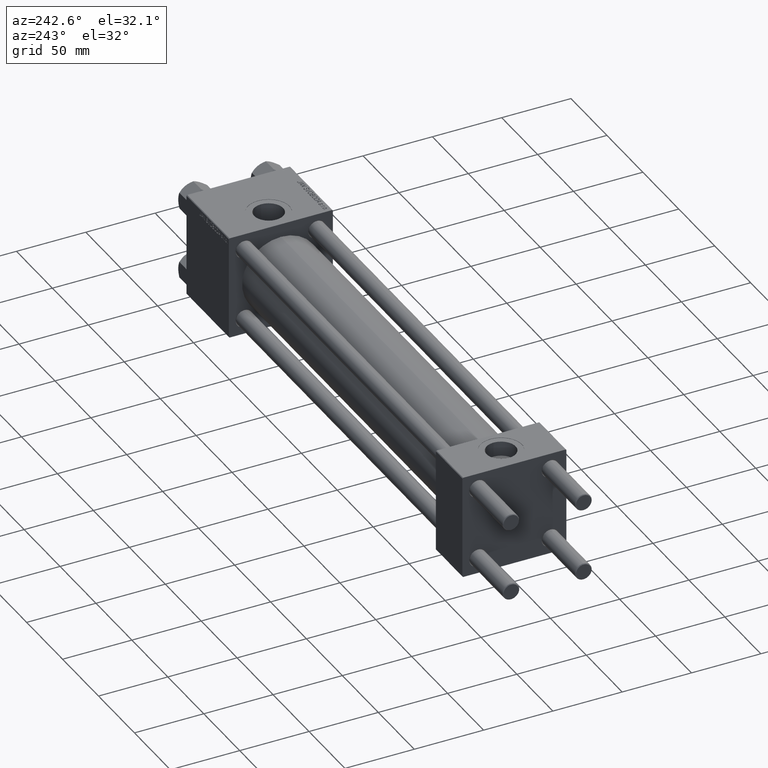
[diagram: clean part render]
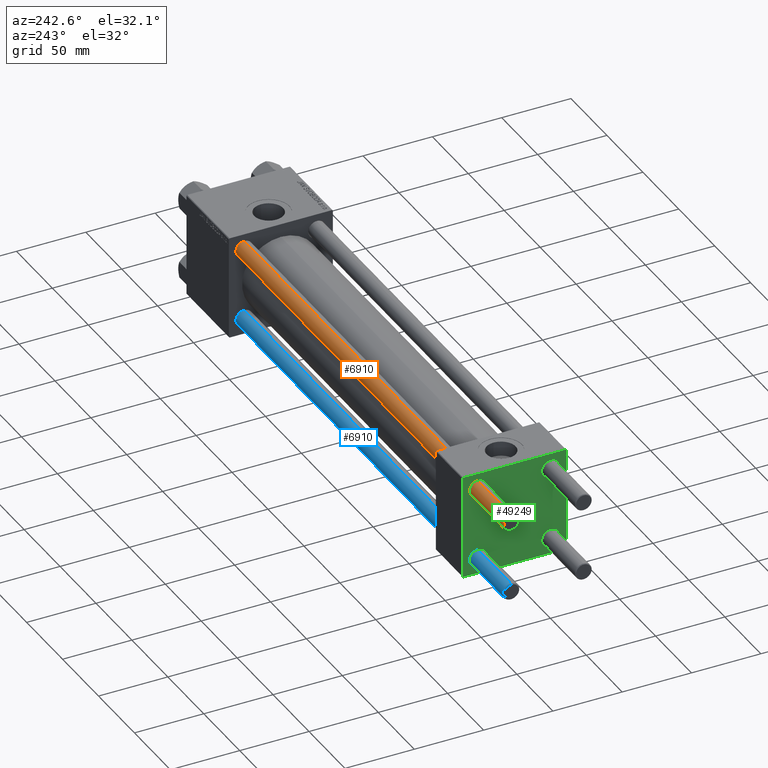
[diagram: same view with three faces highlighted in distinct colors, each labeled with its STEP entity id]
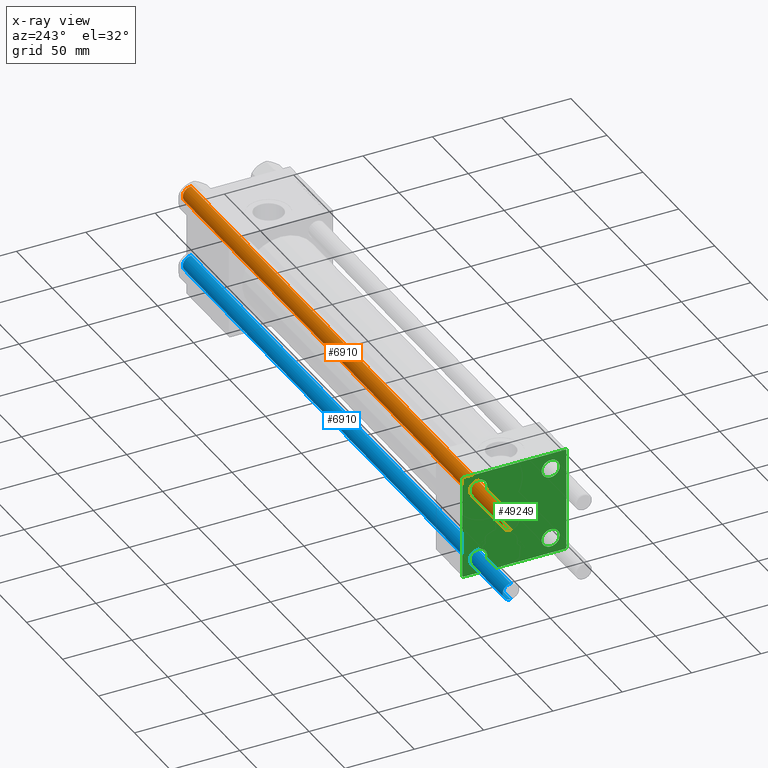
[diagram: x-ray of the same camera — body ghosted, the three highlighted faces saturated]
A machine part, auxiliary view with three faces highlighted in distinct colors.
The next image is the same camera in x-ray (body ghosted, the three faces saturated) — at least one of them is partly hidden behind the body in this view.
Their STEP definitions:

[orange] entity #6910 — the highlighted cylindrical surface (edge-blend (fillet) strip) has radius 6 mm, axis along (-1, -0, -0).
#78 = AXIS2_PLACEMENT_3D ( 'NONE', #45721, #1993, #5427 ) ;
#1993 = DIRECTION ( 'NONE',  ( -0.000000000000000000, -0.000000000000000000, 1.000000000000000000 ) ) ;
#5427 = DIRECTION ( 'NONE',  ( 1.000000000000000000, 0.000000000000000000, 0.000000000000000000 ) ) ;
#6674 = DIRECTION ( 'NONE',  ( -0.000000000000000000, -0.000000000000000000, -1.000000000000000000 ) ) ;
#6910 = ADVANCED_FACE ( 'NONE', ( #29160 ), #40940, .T. ) ;
#8468 = CARTESIAN_POINT ( 'NONE',  ( 0.000000000000000000, 0.000000000000000000, 446.0000000000000000 ) ) ;
#8991 = DIRECTION ( 'NONE',  ( -1.000000000000000000, 0.000000000000000000, 0.000000000000000000 ) ) ;
#8997 = LINE ( 'NONE', #13192, #11723 ) ;
#9292 = DIRECTION ( 'NONE',  ( 0.000000000000000000, 0.000000000000000000, -1.000000000000000000 ) ) ;
#9731 = ORIENTED_EDGE ( 'NONE', *, *, #20150, .T. ) ;
#10589 = CARTESIAN_POINT ( 'NONE',  ( 6.000000000000000888, 7.347880794884119736E-16, 446.0000000000000000 ) ) ;
#11723 = VECTOR ( 'NONE', #29929, 1000.000000000000000 ) ;
#13192 = CARTESIAN_POINT ( 'NONE',  ( -6.000000000000000888, 0.000000000000000000, 446.0000000000000000 ) ) ;
#13661 = CARTESIAN_POINT ( 'NONE',  ( 6.000000000000000888, 7.347880794884119736E-16, 0.5000000000003890221 ) ) ;
#15147 = EDGE_CURVE ( 'NONE', #16744, #37323, #8997, .T. ) ;
#16744 = VERTEX_POINT ( 'NONE', #27433 ) ;
#17683 = CARTESIAN_POINT ( 'NONE',  ( -6.000000000000000888, 0.000000000000000000, 0.5000000000003890221 ) ) ;
#17954 = ORIENTED_EDGE ( 'NONE', *, *, #15147, .F. ) ;
#18708 = VERTEX_POINT ( 'NONE', #13661 ) ;
#19559 = VERTEX_POINT ( 'NONE', #41482 ) ;
#20150 = EDGE_CURVE ( 'NONE', #18708, #37323, #22681, .T. ) ;
#21546 = EDGE_CURVE ( 'NONE', #19559, #18708, #30499, .T. ) ;
#22681 = CIRCLE ( 'NONE', #78, 6.000000000000000888 ) ;
#25147 = EDGE_CURVE ( 'NONE', #16744, #19559, #26967, .T. ) ;
#26857 = VECTOR ( 'NONE', #6674, 1000.000000000000000 ) ;
#26967 = CIRCLE ( 'NONE', #31161, 6.000000000000000888 ) ;
#27433 = CARTESIAN_POINT ( 'NONE',  ( -6.000000000000000888, 0.000000000000000000, 445.5000000000003411 ) ) ;
#29160 = FACE_OUTER_BOUND ( 'NONE', #44869, .T. ) ;
#29929 = DIRECTION ( 'NONE',  ( -0.000000000000000000, -0.000000000000000000, -1.000000000000000000 ) ) ;
#30499 = LINE ( 'NONE', #10589, #26857 ) ;
#31161 = AXIS2_PLACEMENT_3D ( 'NONE', #49329, #9292, #36819 ) ;
#31354 = ORIENTED_EDGE ( 'NONE', *, *, #21546, .T. ) ;
#31872 = ORIENTED_EDGE ( 'NONE', *, *, #25147, .T. ) ;
#36819 = DIRECTION ( 'NONE',  ( 1.000000000000000000, 0.000000000000000000, 0.000000000000000000 ) ) ;
#37323 = VERTEX_POINT ( 'NONE', #17683 ) ;
#40940 = CYLINDRICAL_SURFACE ( 'NONE', #41522, 6.000000000000000888 ) ;
#41482 = CARTESIAN_POINT ( 'NONE',  ( 6.000000000000000888, 7.347880794884119736E-16, 445.5000000000003411 ) ) ;
#41522 = AXIS2_PLACEMENT_3D ( 'NONE', #8468, #44082, #8991 ) ;
#44082 = DIRECTION ( 'NONE',  ( -0.000000000000000000, -0.000000000000000000, -1.000000000000000000 ) ) ;
#44869 = EDGE_LOOP ( 'NONE', ( #31872, #31354, #9731, #17954 ) ) ;
#45721 = CARTESIAN_POINT ( 'NONE',  ( 0.000000000000000000, 0.000000000000000000, 0.5000000000003890221 ) ) ;
#49329 = CARTESIAN_POINT ( 'NONE',  ( 0.000000000000000000, 0.000000000000000000, 445.5000000000003411 ) ) ;

[blue] entity #6910 — the highlighted cylindrical surface (edge-blend (fillet) strip) has radius 6 mm, axis along (1, 0, -0).
#78 = AXIS2_PLACEMENT_3D ( 'NONE', #45721, #1993, #5427 ) ;
#1993 = DIRECTION ( 'NONE',  ( -0.000000000000000000, -0.000000000000000000, 1.000000000000000000 ) ) ;
#5427 = DIRECTION ( 'NONE',  ( 1.000000000000000000, 0.000000000000000000, 0.000000000000000000 ) ) ;
#6674 = DIRECTION ( 'NONE',  ( -0.000000000000000000, -0.000000000000000000, -1.000000000000000000 ) ) ;
#6910 = ADVANCED_FACE ( 'NONE', ( #29160 ), #40940, .T. ) ;
#8468 = CARTESIAN_POINT ( 'NONE',  ( 0.000000000000000000, 0.000000000000000000, 446.0000000000000000 ) ) ;
#8991 = DIRECTION ( 'NONE',  ( -1.000000000000000000, 0.000000000000000000, 0.000000000000000000 ) ) ;
#8997 = LINE ( 'NONE', #13192, #11723 ) ;
#9292 = DIRECTION ( 'NONE',  ( 0.000000000000000000, 0.000000000000000000, -1.000000000000000000 ) ) ;
#9731 = ORIENTED_EDGE ( 'NONE', *, *, #20150, .T. ) ;
#10589 = CARTESIAN_POINT ( 'NONE',  ( 6.000000000000000888, 7.347880794884119736E-16, 446.0000000000000000 ) ) ;
#11723 = VECTOR ( 'NONE', #29929, 1000.000000000000000 ) ;
#13192 = CARTESIAN_POINT ( 'NONE',  ( -6.000000000000000888, 0.000000000000000000, 446.0000000000000000 ) ) ;
#13661 = CARTESIAN_POINT ( 'NONE',  ( 6.000000000000000888, 7.347880794884119736E-16, 0.5000000000003890221 ) ) ;
#15147 = EDGE_CURVE ( 'NONE', #16744, #37323, #8997, .T. ) ;
#16744 = VERTEX_POINT ( 'NONE', #27433 ) ;
#17683 = CARTESIAN_POINT ( 'NONE',  ( -6.000000000000000888, 0.000000000000000000, 0.5000000000003890221 ) ) ;
#17954 = ORIENTED_EDGE ( 'NONE', *, *, #15147, .F. ) ;
#18708 = VERTEX_POINT ( 'NONE', #13661 ) ;
#19559 = VERTEX_POINT ( 'NONE', #41482 ) ;
#20150 = EDGE_CURVE ( 'NONE', #18708, #37323, #22681, .T. ) ;
#21546 = EDGE_CURVE ( 'NONE', #19559, #18708, #30499, .T. ) ;
#22681 = CIRCLE ( 'NONE', #78, 6.000000000000000888 ) ;
#25147 = EDGE_CURVE ( 'NONE', #16744, #19559, #26967, .T. ) ;
#26857 = VECTOR ( 'NONE', #6674, 1000.000000000000000 ) ;
#26967 = CIRCLE ( 'NONE', #31161, 6.000000000000000888 ) ;
#27433 = CARTESIAN_POINT ( 'NONE',  ( -6.000000000000000888, 0.000000000000000000, 445.5000000000003411 ) ) ;
#29160 = FACE_OUTER_BOUND ( 'NONE', #44869, .T. ) ;
#29929 = DIRECTION ( 'NONE',  ( -0.000000000000000000, -0.000000000000000000, -1.000000000000000000 ) ) ;
#30499 = LINE ( 'NONE', #10589, #26857 ) ;
#31161 = AXIS2_PLACEMENT_3D ( 'NONE', #49329, #9292, #36819 ) ;
#31354 = ORIENTED_EDGE ( 'NONE', *, *, #21546, .T. ) ;
#31872 = ORIENTED_EDGE ( 'NONE', *, *, #25147, .T. ) ;
#36819 = DIRECTION ( 'NONE',  ( 1.000000000000000000, 0.000000000000000000, 0.000000000000000000 ) ) ;
#37323 = VERTEX_POINT ( 'NONE', #17683 ) ;
#40940 = CYLINDRICAL_SURFACE ( 'NONE', #41522, 6.000000000000000888 ) ;
#41482 = CARTESIAN_POINT ( 'NONE',  ( 6.000000000000000888, 7.347880794884119736E-16, 445.5000000000003411 ) ) ;
#41522 = AXIS2_PLACEMENT_3D ( 'NONE', #8468, #44082, #8991 ) ;
#44082 = DIRECTION ( 'NONE',  ( -0.000000000000000000, -0.000000000000000000, -1.000000000000000000 ) ) ;
#44869 = EDGE_LOOP ( 'NONE', ( #31872, #31354, #9731, #17954 ) ) ;
#45721 = CARTESIAN_POINT ( 'NONE',  ( 0.000000000000000000, 0.000000000000000000, 0.5000000000003890221 ) ) ;
#49329 = CARTESIAN_POINT ( 'NONE',  ( 0.000000000000000000, 0.000000000000000000, 445.5000000000003411 ) ) ;

[green] entity #49249 — the highlighted planar face has unit normal (-1, 0, 0).
#652 = VERTEX_POINT ( 'NONE', #37825 ) ;
#706 = DIRECTION ( 'NONE',  ( 1.000000000000000000, -0.000000000000000000, 0.000000000000000000 ) ) ;
#797 = EDGE_CURVE ( 'NONE', #42971, #14142, #39370, .T. ) ;
#1934 = CIRCLE ( 'NONE', #31230, 6.500000000000015987 ) ;
#2055 = VERTEX_POINT ( 'NONE', #21229 ) ;
#2726 = CIRCLE ( 'NONE', #16949, 6.500000000000015987 ) ;
#3017 = EDGE_CURVE ( 'NONE', #10101, #39473, #45106, .T. ) ;
#3111 = DIRECTION ( 'NONE',  ( 1.000000000000000000, -0.000000000000000000, 0.000000000000000000 ) ) ;
#4059 = CARTESIAN_POINT ( 'NONE',  ( 0.000000000000000000, -37.50000000000000711, 36.99999999999999289 ) ) ;
#4311 = DIRECTION ( 'NONE',  ( 1.000000000000000000, -0.000000000000000000, 0.000000000000000000 ) ) ;
#4420 = AXIS2_PLACEMENT_3D ( 'NONE', #20627, #706, #20885 ) ;
#4484 = EDGE_LOOP ( 'NONE', ( #44189, #43102, #44181, #29611, #18902, #44802, #51617, #39424 ) ) ;
#4556 = CARTESIAN_POINT ( 'NONE',  ( 0.000000000000000000, 0.000000000000000000, 0.000000000000000000 ) ) ;
#4641 = CARTESIAN_POINT ( 'NONE',  ( 0.000000000000000000, -37.24999999999975842, -37.25000000000027001 ) ) ;
#4823 = FACE_OUTER_BOUND ( 'NONE', #4484, .T. ) ;
#5603 = VECTOR ( 'NONE', #7510, 1000.000000000000000 ) ;
#5867 = VERTEX_POINT ( 'NONE', #30743 ) ;
#7278 = AXIS2_PLACEMENT_3D ( 'NONE', #42602, #41818, #10379 ) ;
#7510 = DIRECTION ( 'NONE',  ( 0.000000000000000000, 0.000000000000000000, -1.000000000000000000 ) ) ;
#7635 = EDGE_CURVE ( 'NONE', #30610, #652, #27419, .T. ) ;
#7804 = ORIENTED_EDGE ( 'NONE', *, *, #32602, .T. ) ;
#8706 = CARTESIAN_POINT ( 'NONE',  ( 0.000000000000000000, -26.14999999999999147, -26.15000000000000924 ) ) ;
#8868 = CARTESIAN_POINT ( 'NONE',  ( 0.000000000000000000, -26.14999999999999147, -19.64999999999999503 ) ) ;
#9268 = DIRECTION ( 'NONE',  ( -1.000000000000000000, 0.000000000000000000, -0.000000000000000000 ) ) ;
#9402 = DIRECTION ( 'NONE',  ( 0.000000000000000000, 9.251858538542971581E-17, -1.000000000000000000 ) ) ;
#10101 = VERTEX_POINT ( 'NONE', #4059 ) ;
#10108 = VERTEX_POINT ( 'NONE', #48021 ) ;
#10109 = VERTEX_POINT ( 'NONE', #25010 ) ;
#10188 = DIRECTION ( 'NONE',  ( 0.000000000000000000, 0.000000000000000000, 1.000000000000000000 ) ) ;
#10379 = DIRECTION ( 'NONE',  ( 0.000000000000000000, 0.000000000000000000, 1.000000000000000000 ) ) ;
#10430 = CARTESIAN_POINT ( 'NONE',  ( 0.000000000000000000, -37.50000000000000711, 37.49999999999999289 ) ) ;
#10727 = LINE ( 'NONE', #26707, #23444 ) ;
#11179 = DIRECTION ( 'NONE',  ( 0.000000000000000000, 0.000000000000000000, 1.000000000000000000 ) ) ;
#11436 = VERTEX_POINT ( 'NONE', #21741 ) ;
#11491 = ORIENTED_EDGE ( 'NONE', *, *, #51422, .T. ) ;
#11909 = DIRECTION ( 'NONE',  ( 0.000000000000000000, 0.000000000000000000, 1.000000000000000000 ) ) ;
#11993 = CARTESIAN_POINT ( 'NONE',  ( 0.000000000000000000, 37.24999999999998579, -37.24999999999998579 ) ) ;
#12106 = CARTESIAN_POINT ( 'NONE',  ( 0.000000000000000000, 37.49999999999999289, -37.50000000000000000 ) ) ;
#12483 = EDGE_CURVE ( 'NONE', #652, #42971, #42731, .T. ) ;
#12774 = LINE ( 'NONE', #4641, #16778 ) ;
#12915 = EDGE_LOOP ( 'NONE', ( #7804, #46249 ) ) ;
#13208 = DIRECTION ( 'NONE',  ( -0.000000000000000000, 0.000000000000000000, 1.000000000000000000 ) ) ;
#13659 = EDGE_LOOP ( 'NONE', ( #26236, #17261 ) ) ;
#14142 = VERTEX_POINT ( 'NONE', #46073 ) ;
#14173 = ORIENTED_EDGE ( 'NONE', *, *, #32949, .T. ) ;
#14224 = CARTESIAN_POINT ( 'NONE',  ( 0.000000000000000000, -37.00000000000000711, 37.49999999999999289 ) ) ;
#14319 = AXIS2_PLACEMENT_3D ( 'NONE', #40451, #4311, #11909 ) ;
#14349 = CARTESIAN_POINT ( 'NONE',  ( 0.000000000000000000, -26.14999999999999147, 19.64999999999999147 ) ) ;
#14365 = LINE ( 'NONE', #10430, #17771 ) ;
#14556 = EDGE_CURVE ( 'NONE', #10108, #39473, #10727, .T. ) ;
#14862 = EDGE_CURVE ( 'NONE', #10108, #30610, #50651, .T. ) ;
#15056 = DIRECTION ( 'NONE',  ( 0.000000000000000000, 0.7071067811865474617, -0.7071067811865474617 ) ) ;
#15100 = CARTESIAN_POINT ( 'NONE',  ( 0.000000000000000000, -26.14999999999999147, 26.15000000000000924 ) ) ;
#15365 = DIRECTION ( 'NONE',  ( 1.000000000000000000, -0.000000000000000000, 0.000000000000000000 ) ) ;
#16188 = DIRECTION ( 'NONE',  ( 0.000000000000000000, -0.7071067811865524577, 0.7071067811865426878 ) ) ;
#16361 = FACE_BOUND ( 'NONE', #13659, .T. ) ;
#16483 = CIRCLE ( 'NONE', #7278, 6.500000000000023093 ) ;
#16576 = DIRECTION ( 'NONE',  ( 0.000000000000000000, -1.000000000000000000, -9.251858538542972814E-17 ) ) ;
#16778 = VECTOR ( 'NONE', #16188, 1000.000000000000000 ) ;
#16949 = AXIS2_PLACEMENT_3D ( 'NONE', #38495, #3111, #30369 ) ;
#17261 = ORIENTED_EDGE ( 'NONE', *, *, #34992, .T. ) ;
#17771 = VECTOR ( 'NONE', #9402, 1000.000000000000000 ) ;
#18902 = ORIENTED_EDGE ( 'NONE', *, *, #24852, .F. ) ;
#19314 = CIRCLE ( 'NONE', #21003, 6.500000000000023093 ) ;
#20071 = EDGE_CURVE ( 'NONE', #14142, #11436, #12774, .T. ) ;
#20288 = FACE_BOUND ( 'NONE', #34106, .T. ) ;
#20627 = CARTESIAN_POINT ( 'NONE',  ( 0.000000000000000000, -26.14999999999999147, -26.15000000000000924 ) ) ;
#20768 = EDGE_CURVE ( 'NONE', #33593, #48787, #19314, .T. ) ;
#20770 = CARTESIAN_POINT ( 'NONE',  ( 0.000000000000000000, 36.99999999999997868, -37.50000000000000000 ) ) ;
#20885 = DIRECTION ( 'NONE',  ( 0.000000000000000000, 0.000000000000000000, 1.000000000000000000 ) ) ;
#21003 = AXIS2_PLACEMENT_3D ( 'NONE', #34044, #33790, #10188 ) ;
#21229 = CARTESIAN_POINT ( 'NONE',  ( 0.000000000000000000, 26.14999999999999858, 32.65000000000002700 ) ) ;
#21741 = CARTESIAN_POINT ( 'NONE',  ( 0.000000000000000000, -37.50000000000000000, -37.00000000000003553 ) ) ;
#22745 = CIRCLE ( 'NONE', #47819, 6.500000000000023093 ) ;
#22798 = VERTEX_POINT ( 'NONE', #24719 ) ;
#23444 = VECTOR ( 'NONE', #50774, 1000.000000000000000 ) ;
#23482 = DIRECTION ( 'NONE',  ( 0.000000000000000000, 0.000000000000000000, 1.000000000000000000 ) ) ;
#24471 = FACE_BOUND ( 'NONE', #34180, .T. ) ;
#24719 = CARTESIAN_POINT ( 'NONE',  ( 0.000000000000000000, 26.14999999999999858, 19.64999999999998437 ) ) ;
#24852 = EDGE_CURVE ( 'NONE', #10101, #11436, #14365, .T. ) ;
#25010 = CARTESIAN_POINT ( 'NONE',  ( 0.000000000000000000, -26.14999999999999147, -32.65000000000002700 ) ) ;
#25105 = EDGE_CURVE ( 'NONE', #37982, #10109, #34545, .T. ) ;
#26236 = ORIENTED_EDGE ( 'NONE', *, *, #25105, .T. ) ;
#26707 = CARTESIAN_POINT ( 'NONE',  ( 0.000000000000000000, 37.49999999999999289, 37.50000000000000000 ) ) ;
#26945 = CARTESIAN_POINT ( 'NONE',  ( 0.000000000000000000, 37.49999999999999289, 37.00000000000000000 ) ) ;
#27095 = CARTESIAN_POINT ( 'NONE',  ( 0.000000000000000000, 37.24999999999999289, 37.24999999999999289 ) ) ;
#27419 = LINE ( 'NONE', #43394, #5603 ) ;
#28922 = EDGE_CURVE ( 'NONE', #46470, #5867, #35249, .T. ) ;
#29196 = ORIENTED_EDGE ( 'NONE', *, *, #20768, .T. ) ;
#29350 = VECTOR ( 'NONE', #16576, 1000.000000000000000 ) ;
#29611 = ORIENTED_EDGE ( 'NONE', *, *, #20071, .T. ) ;
#30041 = VECTOR ( 'NONE', #46640, 1000.000000000000114 ) ;
#30369 = DIRECTION ( 'NONE',  ( 0.000000000000000000, 0.000000000000000000, 1.000000000000000000 ) ) ;
#30610 = VERTEX_POINT ( 'NONE', #26945 ) ;
#30743 = CARTESIAN_POINT ( 'NONE',  ( 0.000000000000000000, 26.14999999999999858, -19.64999999999998792 ) ) ;
#31093 = CARTESIAN_POINT ( 'NONE',  ( 0.000000000000000000, 26.14999999999999858, 26.15000000000000213 ) ) ;
#31148 = AXIS2_PLACEMENT_3D ( 'NONE', #31093, #47030, #11179 ) ;
#31155 = CARTESIAN_POINT ( 'NONE',  ( 0.000000000000000000, -26.14999999999999147, 32.65000000000003411 ) ) ;
#31230 = AXIS2_PLACEMENT_3D ( 'NONE', #8706, #32812, #32551 ) ;
#31716 = EDGE_CURVE ( 'NONE', #48787, #33593, #22745, .T. ) ;
#32336 = FACE_BOUND ( 'NONE', #12915, .T. ) ;
#32551 = DIRECTION ( 'NONE',  ( 0.000000000000000000, 0.000000000000000000, 1.000000000000000000 ) ) ;
#32602 = EDGE_CURVE ( 'NONE', #5867, #46470, #2726, .T. ) ;
#32812 = DIRECTION ( 'NONE',  ( 1.000000000000000000, -0.000000000000000000, 0.000000000000000000 ) ) ;
#32949 = EDGE_CURVE ( 'NONE', #22798, #2055, #45333, .T. ) ;
#33593 = VERTEX_POINT ( 'NONE', #31155 ) ;
#33790 = DIRECTION ( 'NONE',  ( 1.000000000000000000, -0.000000000000000000, 0.000000000000000000 ) ) ;
#34044 = CARTESIAN_POINT ( 'NONE',  ( 0.000000000000000000, -26.14999999999999147, 26.15000000000000924 ) ) ;
#34106 = EDGE_LOOP ( 'NONE', ( #29196, #45149 ) ) ;
#34180 = EDGE_LOOP ( 'NONE', ( #11491, #14173 ) ) ;
#34545 = CIRCLE ( 'NONE', #4420, 6.500000000000015987 ) ;
#34992 = EDGE_CURVE ( 'NONE', #10109, #37982, #1934, .T. ) ;
#35249 = CIRCLE ( 'NONE', #14319, 6.500000000000015987 ) ;
#37053 = PLANE ( 'NONE',  #51634 ) ;
#37825 = CARTESIAN_POINT ( 'NONE',  ( 0.000000000000000000, 37.49999999999999289, -36.99999999999998579 ) ) ;
#37982 = VERTEX_POINT ( 'NONE', #8868 ) ;
#38059 = VECTOR ( 'NONE', #47984, 1000.000000000000114 ) ;
#38495 = CARTESIAN_POINT ( 'NONE',  ( 0.000000000000000000, 26.14999999999999858, -26.15000000000000213 ) ) ;
#39370 = LINE ( 'NONE', #12106, #29350 ) ;
#39424 = ORIENTED_EDGE ( 'NONE', *, *, #14862, .T. ) ;
#39473 = VERTEX_POINT ( 'NONE', #14224 ) ;
#40451 = CARTESIAN_POINT ( 'NONE',  ( 0.000000000000000000, 26.14999999999999858, -26.15000000000000213 ) ) ;
#41187 = CARTESIAN_POINT ( 'NONE',  ( -0.000000000000000000, -37.25000000000000000, 37.25000000000000000 ) ) ;
#41818 = DIRECTION ( 'NONE',  ( 1.000000000000000000, -0.000000000000000000, 0.000000000000000000 ) ) ;
#42602 = CARTESIAN_POINT ( 'NONE',  ( 0.000000000000000000, 26.14999999999999858, 26.15000000000000213 ) ) ;
#42731 = LINE ( 'NONE', #11993, #30041 ) ;
#42971 = VERTEX_POINT ( 'NONE', #20770 ) ;
#43102 = ORIENTED_EDGE ( 'NONE', *, *, #12483, .T. ) ;
#43394 = CARTESIAN_POINT ( 'NONE',  ( 0.000000000000000000, 37.49999999999999289, 37.50000000000000000 ) ) ;
#43726 = CARTESIAN_POINT ( 'NONE',  ( 0.000000000000000000, 26.14999999999999858, -32.65000000000001990 ) ) ;
#44181 = ORIENTED_EDGE ( 'NONE', *, *, #797, .T. ) ;
#44189 = ORIENTED_EDGE ( 'NONE', *, *, #7635, .T. ) ;
#44802 = ORIENTED_EDGE ( 'NONE', *, *, #3017, .T. ) ;
#45106 = LINE ( 'NONE', #41187, #38059 ) ;
#45149 = ORIENTED_EDGE ( 'NONE', *, *, #31716, .T. ) ;
#45333 = CIRCLE ( 'NONE', #31148, 6.500000000000023093 ) ;
#46073 = CARTESIAN_POINT ( 'NONE',  ( 0.000000000000000000, -37.00000000000002132, -37.50000000000000711 ) ) ;
#46249 = ORIENTED_EDGE ( 'NONE', *, *, #28922, .T. ) ;
#46470 = VERTEX_POINT ( 'NONE', #43726 ) ;
#46640 = DIRECTION ( 'NONE',  ( -0.000000000000000000, -0.7071067811865474617, -0.7071067811865474617 ) ) ;
#47030 = DIRECTION ( 'NONE',  ( 1.000000000000000000, -0.000000000000000000, 0.000000000000000000 ) ) ;
#47661 = VECTOR ( 'NONE', #15056, 1000.000000000000114 ) ;
#47819 = AXIS2_PLACEMENT_3D ( 'NONE', #15100, #15365, #23482 ) ;
#47984 = DIRECTION ( 'NONE',  ( -0.000000000000000000, 0.7071067811865474617, 0.7071067811865474617 ) ) ;
#48021 = CARTESIAN_POINT ( 'NONE',  ( 0.000000000000000000, 36.99999999999999289, 37.50000000000000000 ) ) ;
#48787 = VERTEX_POINT ( 'NONE', #14349 ) ;
#49249 = ADVANCED_FACE ( 'NONE', ( #20288, #16361, #32336, #24471, #4823 ), #37053, .T. ) ;
#50651 = LINE ( 'NONE', #27095, #47661 ) ;
#50774 = DIRECTION ( 'NONE',  ( 0.000000000000000000, -1.000000000000000000, -9.251858538542971581E-17 ) ) ;
#51422 = EDGE_CURVE ( 'NONE', #2055, #22798, #16483, .T. ) ;
#51617 = ORIENTED_EDGE ( 'NONE', *, *, #14556, .F. ) ;
#51634 = AXIS2_PLACEMENT_3D ( 'NONE', #4556, #9268, #13208 ) ;